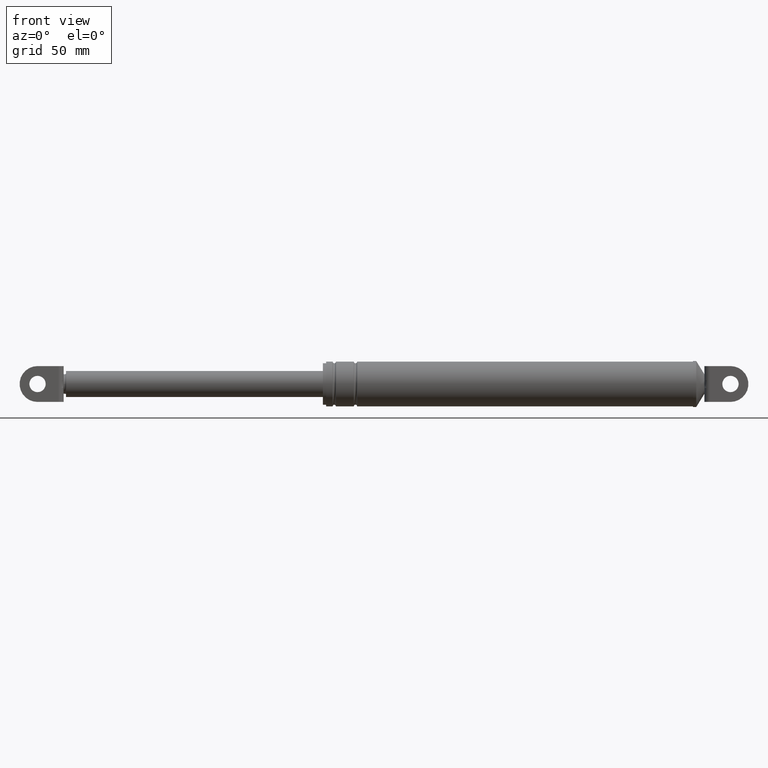
[diagram: clean part render]
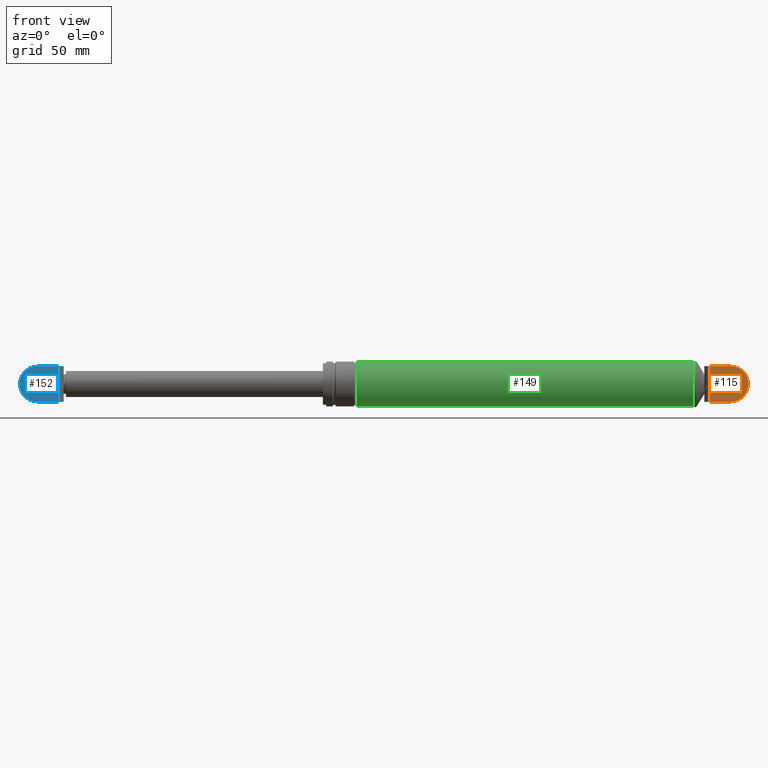
[diagram: same view with three faces highlighted in distinct colors, each labeled with its STEP entity id]
A machine part, front view with three faces highlighted in distinct colors.
Their STEP definitions:

[orange] entity #115 — the highlighted planar face has unit normal (0, 1, 0).
#115=ADVANCED_FACE('',(#212,#213),#211,.F.);
#211=PLANE('',#952);
#212=FACE_OUTER_BOUND('',#953,.T.);
#213=FACE_BOUND('',#954,.T.);
#949=CARTESIAN_POINT('',(4.06072015297E+002,-8.69999700000E+000,1.71406081428E+002));
#950=DIRECTION('',(0.00000000000E+000,1.00000000000E+000,0.00000000000E+000));
#951=DIRECTION('',(0.00000000000E+000,0.00000000000E+000,1.00000000000E+000));
#952=AXIS2_PLACEMENT_3D('',#949,#950,#951);
#953=EDGE_LOOP('',(#1532,#1533,#1534,#1535,#1536,#1537));
#954=EDGE_LOOP('',(#1538,#1539));
#1532=ORIENTED_EDGE('',*,*,#1867,.F.);
#1533=ORIENTED_EDGE('',*,*,#1868,.T.);
#1534=ORIENTED_EDGE('',*,*,#1864,.T.);
#1535=ORIENTED_EDGE('',*,*,#1869,.T.);
#1536=ORIENTED_EDGE('',*,*,#1870,.T.);
#1537=ORIENTED_EDGE('',*,*,#1871,.T.);
#1538=ORIENTED_EDGE('',*,*,#1872,.F.);
#1539=ORIENTED_EDGE('',*,*,#1873,.F.);
#1864=EDGE_CURVE('',#2080,#2073,#2081,.T.);
#1867=EDGE_CURVE('',#2100,#2101,#2102,.T.);
#1868=EDGE_CURVE('',#2100,#2080,#2108,.T.);
#1869=EDGE_CURVE('',#2073,#2114,#2115,.T.);
#1870=EDGE_CURVE('',#2114,#2121,#2122,.T.);
#1871=EDGE_CURVE('',#2121,#2101,#2128,.T.);
#1872=EDGE_CURVE('',#2134,#2135,#2136,.T.);
#1873=EDGE_CURVE('',#2135,#2134,#2142,.T.);
#2073=VERTEX_POINT('',#3177);
#2080=VERTEX_POINT('',#3182);
#2081=(BOUNDED_CURVE() B_SPLINE_CURVE(3,(#3183,#3184,#3185,#3186,#3187,#3188,#3189,#3190,#3191,#3192),.UNSPECIFIED.,.F.,.F.) B_SPLINE_CURVE_WITH_KNOTS((4,2,2,2,4),(0.00000000000E+000,1.19890467989E-003,2.39780935978E-003,3.59671403966E-003,4.79561871955E-003),.UNSPECIFIED.) CURVE() GEOMETRIC_REPRESENTATION_ITEM() RATIONAL_B_SPLINE_CURVE((1.00000000000E+000,1.00000000000E+000,1.00000000000E+000,1.00000000000E+000,1.00000000000E+000,1.00000000000E+000,1.00000000000E+000,1.00000000000E+000,1.00000000000E+000,1.00000000000E+000)) REPRESENTATION_ITEM('') );
#2100=VERTEX_POINT('',#3202);
#2101=VERTEX_POINT('',#3203);
#2102=LINE('',#3204,#3205);
#2108=LINE('',#3207,#3208);
#2114=VERTEX_POINT('',#3210);
#2115=LINE('',#3211,#3212);
#2121=VERTEX_POINT('',#3214);
#2122=LINE('',#3215,#3216);
#2128=CIRCLE('',#3221,1.10000000000E+001);
#2134=VERTEX_POINT('',#3222);
#2135=VERTEX_POINT('',#3223);
#2136=CIRCLE('',#3227,5.00000000000E+000);
#2142=CIRCLE('',#3231,5.00000000000E+000);
#3177=CARTESIAN_POINT('',(4.08495255021E+002,-8.69999700000E+000,1.82208159938E+002));
#3182=CARTESIAN_POINT('',(4.08495255021E+002,-8.69999700000E+000,1.87004005223E+002));
#3183=CARTESIAN_POINT('',(4.08495255021E+002,-8.69999700000E+000,1.87004005223E+002));
#3184=CARTESIAN_POINT('',(4.08495255021E+002,-8.69999700000E+000,1.86604349137E+002));
#3185=CARTESIAN_POINT('',(4.08483629676E+002,-8.69999700000E+000,1.86204812777E+002));
#3186=CARTESIAN_POINT('',(4.08463770750E+002,-8.69999700000E+000,1.85405705126E+002));
#3187=CARTESIAN_POINT('',(4.08455955168E+002,-8.69999700000E+000,1.85006129531E+002));
#3188=CARTESIAN_POINT('',(4.08455946181E+002,-8.69999700000E+000,1.84206817451E+002));
#3189=CARTESIAN_POINT('',(4.08463756854E+002,-8.69999700000E+000,1.83807059244E+002));
#3190=CARTESIAN_POINT('',(4.08483620326E+002,-8.69999700000E+000,1.83007688645E+002));
#3191=CARTESIAN_POINT('',(4.08495255021E+002,-8.69999700000E+000,1.82608036066E+002));
#3192=CARTESIAN_POINT('',(4.08495255021E+002,-8.69999700000E+000,1.82208159938E+002));
#3202=CARTESIAN_POINT('',(4.08495255021E+002,-8.69999700000E+000,1.95606082580E+002));
#3203=CARTESIAN_POINT('',(4.21295254061E+002,-8.69999700000E+000,1.95606082580E+002));
#3204=CARTESIAN_POINT('',(4.08495255021E+002,-8.69999700000E+000,1.95606082580E+002));
#3205=VECTOR('',#3206,1.27999990401E+001);
#3206=DIRECTION('',(1.00000000000E+000,0.00000000000E+000,0.00000000000E+000));
#3207=CARTESIAN_POINT('',(4.08495255021E+002,-8.69999700000E+000,1.95606082580E+002));
#3208=VECTOR('',#3209,8.60207735738E+000);
#3209=DIRECTION('',(0.00000000000E+000,0.00000000000E+000,-1.00000000000E+000));
#3210=CARTESIAN_POINT('',(4.08495255021E+002,-8.69999700000E+000,1.73606082580E+002));
#3211=CARTESIAN_POINT('',(4.08495255021E+002,-8.69999700000E+000,1.82208159938E+002));
#3212=VECTOR('',#3213,8.60207735738E+000);
#3213=DIRECTION('',(0.00000000000E+000,0.00000000000E+000,-1.00000000000E+000));
#3214=CARTESIAN_POINT('',(4.21295254061E+002,-8.69999700000E+000,1.73606082580E+002));
#3215=CARTESIAN_POINT('',(4.08495255021E+002,-8.69999700000E+000,1.73606082580E+002));
#3216=VECTOR('',#3217,1.27999990401E+001);
#3217=DIRECTION('',(1.00000000000E+000,0.00000000000E+000,0.00000000000E+000));
#3218=CARTESIAN_POINT('',(4.21295255021E+002,-8.69999700000E+000,1.84606082580E+002));
#3219=DIRECTION('',(-0.00000000000E+000,-1.00000000000E+000,0.00000000000E+000));
#3220=DIRECTION('',(-8.72664517201E-008,0.00000000000E+000,1.00000000000E+000));
#3221=AXIS2_PLACEMENT_3D('',#3218,#3219,#3220);
#3222=CARTESIAN_POINT('',(4.21295255021E+002,-8.69999700000E+000,1.79606082580E+002));
#3223=CARTESIAN_POINT('',(4.21295255021E+002,-8.69999700000E+000,1.89606082580E+002));
#3224=CARTESIAN_POINT('',(4.21295255021E+002,-8.69999700000E+000,1.84606082580E+002));
#3225=DIRECTION('',(-0.00000000000E+000,-1.00000000000E+000,0.00000000000E+000));
#3226=DIRECTION('',(-1.22460635382E-016,0.00000000000E+000,1.00000000000E+000));
#3227=AXIS2_PLACEMENT_3D('',#3224,#3225,#3226);
#3228=CARTESIAN_POINT('',(4.21295255021E+002,-8.69999700000E+000,1.84606082580E+002));
#3229=DIRECTION('',(-0.00000000000E+000,-1.00000000000E+000,0.00000000000E+000));
#3230=DIRECTION('',(-1.22460635382E-016,0.00000000000E+000,1.00000000000E+000));
#3231=AXIS2_PLACEMENT_3D('',#3228,#3229,#3230);

[blue] entity #152 — the highlighted planar face has unit normal (0, -1, 0).
#152=ADVANCED_FACE('',(#588,#589),#587,.T.);
#587=PLANE('',#1279);
#588=FACE_OUTER_BOUND('',#1280,.T.);
#589=FACE_BOUND('',#1281,.T.);
#1276=CARTESIAN_POINT('',(-1.70886758629E+001,-8.69999699987E+000,1.97806082580E+002));
#1277=DIRECTION('',(0.00000000000E+000,-1.00000000000E+000,0.00000000000E+000));
#1278=DIRECTION('',(0.00000000000E+000,0.00000000000E+000,-1.00000000000E+000));
#1279=AXIS2_PLACEMENT_3D('',#1276,#1277,#1278);
#1280=EDGE_LOOP('',(#1708,#1709,#1710,#1711,#1712,#1713));
#1281=EDGE_LOOP('',(#1714,#1715));
#1708=ORIENTED_EDGE('',*,*,#1950,.F.);
#1709=ORIENTED_EDGE('',*,*,#1951,.T.);
#1710=ORIENTED_EDGE('',*,*,#1952,.T.);
#1711=ORIENTED_EDGE('',*,*,#1953,.T.);
#1712=ORIENTED_EDGE('',*,*,#1954,.T.);
#1713=ORIENTED_EDGE('',*,*,#1955,.T.);
#1714=ORIENTED_EDGE('',*,*,#1956,.F.);
#1715=ORIENTED_EDGE('',*,*,#1957,.F.);
#1950=EDGE_CURVE('',#2646,#2647,#2648,.T.);
#1951=EDGE_CURVE('',#2646,#2654,#2655,.T.);
#1952=EDGE_CURVE('',#2654,#2661,#2662,.T.);
#1953=EDGE_CURVE('',#2661,#2668,#2669,.T.);
#1954=EDGE_CURVE('',#2668,#2675,#2676,.T.);
#1955=EDGE_CURVE('',#2675,#2647,#2682,.T.);
#1956=EDGE_CURVE('',#2688,#2689,#2690,.T.);
#1957=EDGE_CURVE('',#2689,#2688,#2696,.T.);
#2646=VERTEX_POINT('',#3534);
#2647=VERTEX_POINT('',#3535);
#2648=LINE('',#3536,#3537);
#2654=VERTEX_POINT('',#3539);
#2655=LINE('',#3540,#3541);
#2661=VERTEX_POINT('',#3543);
#2662=(BOUNDED_CURVE() B_SPLINE_CURVE(3,(#3544,#3545,#3546,#3547,#3548,#3549,#3550,#3551,#3552,#3553),.UNSPECIFIED.,.F.,.F.) B_SPLINE_CURVE_WITH_KNOTS((4,2,2,2,4),(0.00000000000E+000,1.19890468032E-003,2.39780936064E-003,3.59671404096E-003,4.79561872128E-003),.UNSPECIFIED.) CURVE() GEOMETRIC_REPRESENTATION_ITEM() RATIONAL_B_SPLINE_CURVE((1.00000000000E+000,1.00000000000E+000,1.00000000000E+000,1.00000000000E+000,1.00000000000E+000,1.00000000000E+000,1.00000000000E+000,1.00000000000E+000,1.00000000000E+000,1.00000000000E+000)) REPRESENTATION_ITEM('') );
#2668=VERTEX_POINT('',#3554);
#2669=LINE('',#3555,#3556);
#2675=VERTEX_POINT('',#3558);
#2676=LINE('',#3559,#3560);
#2682=CIRCLE('',#3565,1.10000000000E+001);
#2688=VERTEX_POINT('',#3566);
#2689=VERTEX_POINT('',#3567);
#2690=CIRCLE('',#3571,5.00000000000E+000);
#2696=CIRCLE('',#3575,5.00000000000E+000);
#3534=CARTESIAN_POINT('',(9.09525502110E+000,-8.69999699987E+000,1.73606082580E+002));
#3535=CARTESIAN_POINT('',(-3.70474593883E+000,-8.69999699987E+000,1.73606082580E+002));
#3536=CARTESIAN_POINT('',(9.09525502110E+000,-8.69999699987E+000,1.73606082580E+002));
#3537=VECTOR('',#3538,1.28000009599E+001);
#3538=DIRECTION('',(-1.00000000000E+000,0.00000000000E+000,0.00000000000E+000));
#3539=CARTESIAN_POINT('',(9.09525502110E+000,-8.69999699987E+000,1.82208159937E+002));
#3540=CARTESIAN_POINT('',(9.09525502110E+000,-8.69999699987E+000,1.73606082580E+002));
#3541=VECTOR('',#3542,8.60207735665E+000);
#3542=DIRECTION('',(0.00000000000E+000,0.00000000000E+000,1.00000000000E+000));
#3543=CARTESIAN_POINT('',(9.09525502110E+000,-8.69999699987E+000,1.87004005224E+002));
#3544=CARTESIAN_POINT('',(9.09525502110E+000,-8.69999699987E+000,1.82208159937E+002));
#3545=CARTESIAN_POINT('',(9.09525502110E+000,-8.69999699987E+000,1.82607816023E+002));
#3546=CARTESIAN_POINT('',(9.10688036614E+000,-8.69999699987E+000,1.83007352383E+002));
#3547=CARTESIAN_POINT('',(9.12673929261E+000,-8.69999699987E+000,1.83806460034E+002));
#3548=CARTESIAN_POINT('',(9.13455487411E+000,-8.69999699987E+000,1.84206035630E+002));
#3549=CARTESIAN_POINT('',(9.13456386125E+000,-8.69999699987E+000,1.85005347710E+002));
#3550=CARTESIAN_POINT('',(9.12675318869E+000,-8.69999699987E+000,1.85405105917E+002));
#3551=CARTESIAN_POINT('',(9.10688971664E+000,-8.69999699987E+000,1.86204476516E+002));
#3552=CARTESIAN_POINT('',(9.09525502110E+000,-8.69999699987E+000,1.86604129095E+002));
#3553=CARTESIAN_POINT('',(9.09525502110E+000,-8.69999699987E+000,1.87004005224E+002));
#3554=CARTESIAN_POINT('',(9.09525502110E+000,-8.69999699987E+000,1.95606082580E+002));
#3555=CARTESIAN_POINT('',(9.09525502110E+000,-8.69999699987E+000,1.87004005224E+002));
#3556=VECTOR('',#3557,8.60207735638E+000);
#3557=DIRECTION('',(0.00000000000E+000,0.00000000000E+000,1.00000000000E+000));
#3558=CARTESIAN_POINT('',(-3.70474593883E+000,-8.69999699987E+000,1.95606082580E+002));
#3559=CARTESIAN_POINT('',(9.09525502110E+000,-8.69999699987E+000,1.95606082580E+002));
#3560=VECTOR('',#3561,1.28000009599E+001);
#3561=DIRECTION('',(-1.00000000000E+000,0.00000000000E+000,0.00000000000E+000));
#3562=CARTESIAN_POINT('',(-3.70474497890E+000,-8.69999699987E+000,1.84606082580E+002));
#3563=DIRECTION('',(0.00000000000E+000,-1.00000000000E+000,0.00000000000E+000));
#3564=DIRECTION('',(-0.00000000000E+000,-0.00000000000E+000,-1.00000000000E+000));
#3565=AXIS2_PLACEMENT_3D('',#3562,#3563,#3564);
#3566=CARTESIAN_POINT('',(-3.70474497890E+000,-8.69999699987E+000,1.79606082580E+002));
#3567=CARTESIAN_POINT('',(-3.70474497890E+000,-8.69999699987E+000,1.89606082580E+002));
#3568=CARTESIAN_POINT('',(-3.70474497890E+000,-8.69999699987E+000,1.84606082580E+002));
#3569=DIRECTION('',(-0.00000000000E+000,-1.00000000000E+000,0.00000000000E+000));
#3570=DIRECTION('',(-1.22460635382E-016,0.00000000000E+000,1.00000000000E+000));
#3571=AXIS2_PLACEMENT_3D('',#3568,#3569,#3570);
#3572=CARTESIAN_POINT('',(-3.70474497890E+000,-8.69999699987E+000,1.84606082580E+002));
#3573=DIRECTION('',(-0.00000000000E+000,-1.00000000000E+000,0.00000000000E+000));
#3574=DIRECTION('',(-1.22460635382E-016,0.00000000000E+000,1.00000000000E+000));
#3575=AXIS2_PLACEMENT_3D('',#3572,#3573,#3574);

[green] entity #149 — the highlighted cylindrical surface (edge-blend (fillet) strip) has radius 13.7 mm, axis along (1, 0, 0).
#149=ADVANCED_FACE('',(#558),#557,.T.);
#557=CYLINDRICAL_SURFACE('',#1264,1.37000000000E+001);
#558=FACE_OUTER_BOUND('',#1265,.T.);
#1261=CARTESIAN_POINT('',(0.00000000000E+000,0.00000000000E+000,1.84606082580E+002));
#1262=DIRECTION('',(1.00000000000E+000,-0.00000000000E+000,-0.00000000000E+000));
#1263=DIRECTION('',(-0.00000000000E+000,-0.00000000000E+000,-1.00000000000E+000));
#1264=AXIS2_PLACEMENT_3D('',#1261,#1262,#1263);
#1265=EDGE_LOOP('',(#1696,#1697,#1698,#1699));
#1696=ORIENTED_EDGE('',*,*,#1939,.F.);
#1697=ORIENTED_EDGE('',*,*,#1946,.T.);
#1698=ORIENTED_EDGE('',*,*,#1915,.T.);
#1699=ORIENTED_EDGE('',*,*,#1947,.F.);
#1915=EDGE_CURVE('',#2422,#2423,#2424,.T.);
#1939=EDGE_CURVE('',#2545,#2544,#2578,.T.);
#1946=EDGE_CURVE('',#2545,#2422,#2622,.T.);
#1947=EDGE_CURVE('',#2544,#2423,#2628,.T.);
#2422=VERTEX_POINT('',#3404);
#2423=VERTEX_POINT('',#3405);
#2424=CIRCLE('',#3409,1.37000000000E+001);
#2544=VERTEX_POINT('',#3476);
#2545=VERTEX_POINT('',#3477);
#2578=CIRCLE('',#3507,1.37000000000E+001);
#2622=(BOUNDED_CURVE() B_SPLINE_CURVE(1,(#3526,#3527),.UNSPECIFIED.,.F.,.F.) B_SPLINE_CURVE_WITH_KNOTS((2,2),(4.42477876322E-002,9.55752212239E-001),.UNSPECIFIED.) CURVE() GEOMETRIC_REPRESENTATION_ITEM() RATIONAL_B_SPLINE_CURVE((1.00000000000E+000,1.00000000000E+000)) REPRESENTATION_ITEM('') );
#2628=(BOUNDED_CURVE() B_SPLINE_CURVE(1,(#3528,#3529),.UNSPECIFIED.,.F.,.F.) B_SPLINE_CURVE_WITH_KNOTS((2,2),(4.42477876106E-002,9.55752212389E-001),.UNSPECIFIED.) CURVE() GEOMETRIC_REPRESENTATION_ITEM() RATIONAL_B_SPLINE_CURVE((7.50000000000E-001,7.50000000000E-001)) REPRESENTATION_ITEM('') );
#3404=CARTESIAN_POINT('',(3.98295255021E+002,0.00000000000E+000,1.70906082580E+002));
#3405=CARTESIAN_POINT('',(3.98295255021E+002,0.00000000000E+000,1.98306082580E+002));
#3406=CARTESIAN_POINT('',(3.98295255021E+002,0.00000000000E+000,1.84606082580E+002));
#3407=DIRECTION('',(-1.00000000000E+000,0.00000000000E+000,0.00000000000E+000));
#3408=DIRECTION('',(0.00000000000E+000,-1.22460635382E-016,1.00000000000E+000));
#3409=AXIS2_PLACEMENT_3D('',#3406,#3407,#3408);
#3476=CARTESIAN_POINT('',(1.92295255021E+002,0.00000000000E+000,1.98306082580E+002));
#3477=CARTESIAN_POINT('',(1.92295255021E+002,0.00000000000E+000,1.70906082580E+002));
#3504=CARTESIAN_POINT('',(1.92295255021E+002,0.00000000000E+000,1.84606082580E+002));
#3505=DIRECTION('',(-1.00000000000E+000,0.00000000000E+000,0.00000000000E+000));
#3506=DIRECTION('',(0.00000000000E+000,-1.22460635382E-016,1.00000000000E+000));
#3507=AXIS2_PLACEMENT_3D('',#3504,#3505,#3506);
#3526=CARTESIAN_POINT('',(1.92295255026E+002,0.00000000000E+000,1.70906082580E+002));
#3527=CARTESIAN_POINT('',(3.98295254987E+002,0.00000000000E+000,1.70906082580E+002));
#3528=CARTESIAN_POINT('',(1.92295255021E+002,-5.92118946467E-016,1.98306082580E+002));
#3529=CARTESIAN_POINT('',(3.98295255021E+002,-5.92118946467E-016,1.98306082580E+002));